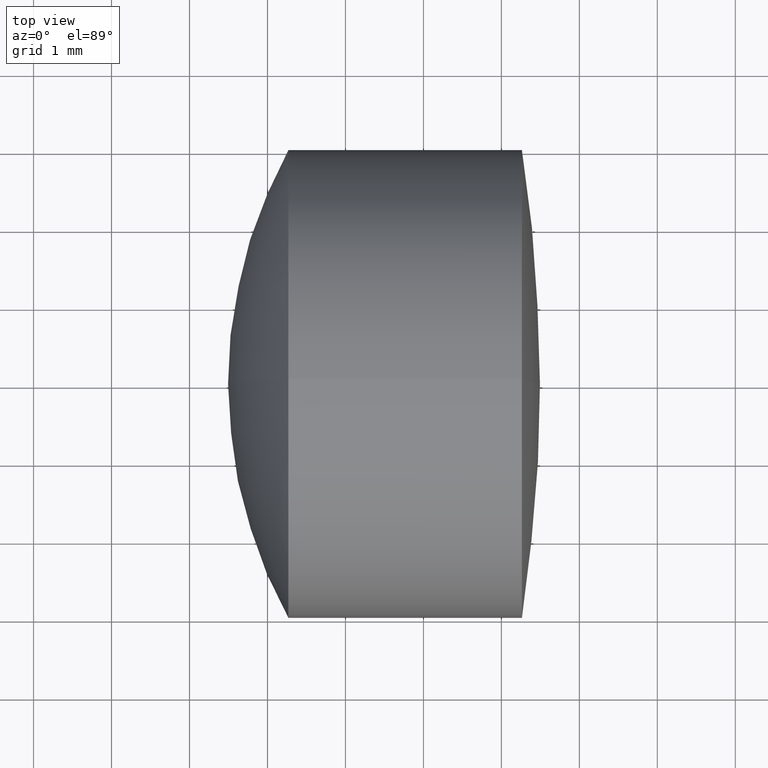
[diagram: clean part render]
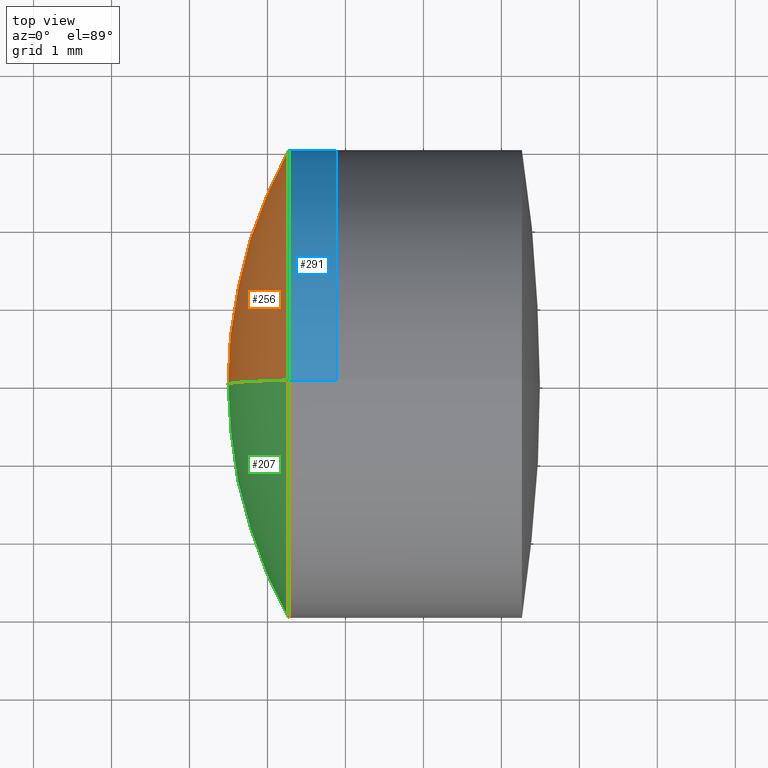
[diagram: same view with three faces highlighted in distinct colors, each labeled with its STEP entity id]
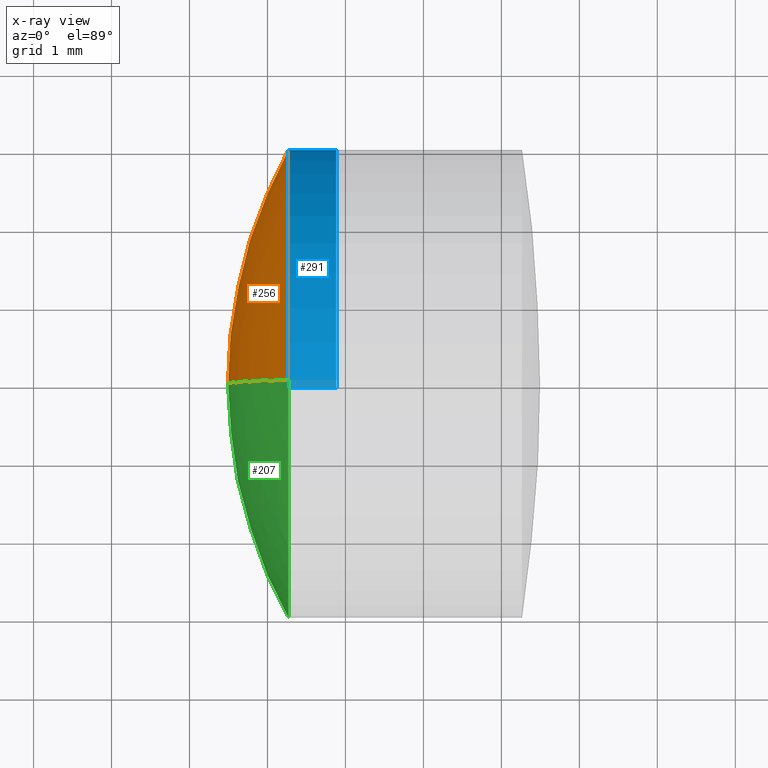
[diagram: x-ray of the same camera — body ghosted, the three highlighted faces saturated]
A machine part, top view with three faces highlighted in distinct colors.
The next image is the same camera in x-ray (body ghosted, the three faces saturated) — at least one of them is partly hidden behind the body in this view.
Their STEP definitions:

[orange] entity #256 — the highlighted spherical surface has radius 6.2 mm.
#4 = AXIS2_PLACEMENT_3D ( 'NONE', #27, #309, #134 ) ;
#17 = ORIENTED_EDGE ( 'NONE', *, *, #197, .T. ) ;
#27 = CARTESIAN_POINT ( 'NONE',  ( 7.694434915595918400, 0.0000000000000000000, 3.388131899457728100E-018 ) ) ;
#28 = EDGE_CURVE ( 'NONE', #187, #33, #204, .T. ) ;
#31 = DIRECTION ( 'NONE',  ( 0.0000000000000000000, -1.000000000000000000, -1.224646799147353200E-016 ) ) ;
#32 = SPHERICAL_SURFACE ( 'NONE', #186, 6.199999999999998400 ) ;
#33 = VERTEX_POINT ( 'NONE', #143 ) ;
#87 = AXIS2_PLACEMENT_3D ( 'NONE', #324, #295, #217 ) ;
#92 = CIRCLE ( 'NONE', #87, 3.000000000000000000 ) ;
#123 = AXIS2_PLACEMENT_3D ( 'NONE', #303, #31, #202 ) ;
#128 = EDGE_LOOP ( 'NONE', ( #222, #17, #257 ) ) ;
#134 = DIRECTION ( 'NONE',  ( 0.0000000000000000000, 0.0000000000000000000, 1.000000000000000000 ) ) ;
#143 = CARTESIAN_POINT ( 'NONE',  ( 1.494434915595920500, 0.0000000000000000000, -3.762523758362216700E-016 ) ) ;
#182 = DIRECTION ( 'NONE',  ( -0.0000000000000000000, -1.000000000000000000, -0.0000000000000000000 ) ) ;
#186 = AXIS2_PLACEMENT_3D ( 'NONE', #201, #182, #221 ) ;
#187 = VERTEX_POINT ( 'NONE', #205 ) ;
#197 = EDGE_CURVE ( 'NONE', #187, #231, #92, .T. ) ;
#201 = CARTESIAN_POINT ( 'NONE',  ( 7.694434915595918400, 0.0000000000000000000, 3.388131899457728100E-018 ) ) ;
#202 = DIRECTION ( 'NONE',  ( 0.0000000000000000000, 1.224646799147353200E-016, -1.000000000000000000 ) ) ;
#204 = CIRCLE ( 'NONE', #123, 6.199999999999998400 ) ;
#205 = CARTESIAN_POINT ( 'NONE',  ( 2.268570929095705700, -3.673940397442059400E-016, 3.000000000000000000 ) ) ;
#217 = DIRECTION ( 'NONE',  ( 0.0000000000000000000, 0.0000000000000000000, 1.000000000000000000 ) ) ;
#221 = DIRECTION ( 'NONE',  ( 0.0000000000000000000, 0.0000000000000000000, -1.000000000000000000 ) ) ;
#222 = ORIENTED_EDGE ( 'NONE', *, *, #28, .F. ) ;
#231 = VERTEX_POINT ( 'NONE', #345 ) ;
#256 = ADVANCED_FACE ( 'NONE', ( #304 ), #32, .T. ) ;
#257 = ORIENTED_EDGE ( 'NONE', *, *, #332, .T. ) ;
#266 = CIRCLE ( 'NONE', #4, 6.199999999999998400 ) ;
#295 = DIRECTION ( 'NONE',  ( -1.000000000000000000, -0.0000000000000000000, -0.0000000000000000000 ) ) ;
#303 = CARTESIAN_POINT ( 'NONE',  ( 7.694434915595918400, 0.0000000000000000000, 3.388131899457728100E-018 ) ) ;
#304 = FACE_OUTER_BOUND ( 'NONE', #128, .T. ) ;
#309 = DIRECTION ( 'NONE',  ( 0.0000000000000000000, 1.000000000000000000, -0.0000000000000000000 ) ) ;
#324 = CARTESIAN_POINT ( 'NONE',  ( 2.268570929095705200, 0.0000000000000000000, 0.0000000000000000000 ) ) ;
#332 = EDGE_CURVE ( 'NONE', #231, #33, #266, .T. ) ;
#345 = CARTESIAN_POINT ( 'NONE',  ( 2.268570929095705700, 0.0000000000000000000, -3.000000000000000000 ) ) ;

[blue] entity #291 — the highlighted cylindrical surface (partial cylindrical patch) has radius 3 mm, axis along (-1, -0, -0).
#8 = CARTESIAN_POINT ( 'NONE',  ( 2.881554070428458100, 0.0000000000000000000, 3.000000000000000000 ) ) ;
#40 = VECTOR ( 'NONE', #149, 1000.000000000000000 ) ;
#42 = FACE_OUTER_BOUND ( 'NONE', #168, .T. ) ;
#65 = VECTOR ( 'NONE', #310, 1000.000000000000000 ) ;
#87 = AXIS2_PLACEMENT_3D ( 'NONE', #324, #295, #217 ) ;
#92 = CIRCLE ( 'NONE', #87, 3.000000000000000000 ) ;
#94 = DIRECTION ( 'NONE',  ( -1.000000000000000000, -0.0000000000000000000, -0.0000000000000000000 ) ) ;
#95 = EDGE_CURVE ( 'NONE', #227, #231, #195, .T. ) ;
#100 = CARTESIAN_POINT ( 'NONE',  ( -0.8160621761658039000, 0.0000000000000000000, 0.0000000000000000000 ) ) ;
#108 = CARTESIAN_POINT ( 'NONE',  ( 2.881554070428458100, 0.0000000000000000000, 0.0000000000000000000 ) ) ;
#132 = VERTEX_POINT ( 'NONE', #8 ) ;
#140 = CYLINDRICAL_SURFACE ( 'NONE', #311, 3.000000000000000000 ) ;
#141 = DIRECTION ( 'NONE',  ( -1.000000000000000000, -0.0000000000000000000, -0.0000000000000000000 ) ) ;
#144 = EDGE_CURVE ( 'NONE', #132, #227, #281, .T. ) ;
#149 = DIRECTION ( 'NONE',  ( -1.000000000000000000, -0.0000000000000000000, -0.0000000000000000000 ) ) ;
#152 = DIRECTION ( 'NONE',  ( 0.0000000000000000000, 0.0000000000000000000, 1.000000000000000000 ) ) ;
#160 = LINE ( 'NONE', #245, #65 ) ;
#168 = EDGE_LOOP ( 'NONE', ( #172, #259, #242, #333 ) ) ;
#172 = ORIENTED_EDGE ( 'NONE', *, *, #144, .T. ) ;
#187 = VERTEX_POINT ( 'NONE', #205 ) ;
#195 = LINE ( 'NONE', #292, #40 ) ;
#197 = EDGE_CURVE ( 'NONE', #187, #231, #92, .T. ) ;
#205 = CARTESIAN_POINT ( 'NONE',  ( 2.268570929095705700, -3.673940397442059400E-016, 3.000000000000000000 ) ) ;
#217 = DIRECTION ( 'NONE',  ( 0.0000000000000000000, 0.0000000000000000000, 1.000000000000000000 ) ) ;
#227 = VERTEX_POINT ( 'NONE', #337 ) ;
#231 = VERTEX_POINT ( 'NONE', #345 ) ;
#236 = EDGE_CURVE ( 'NONE', #132, #187, #160, .T. ) ;
#242 = ORIENTED_EDGE ( 'NONE', *, *, #197, .F. ) ;
#245 = CARTESIAN_POINT ( 'NONE',  ( -0.8160621761658039000, 0.0000000000000000000, 3.000000000000000000 ) ) ;
#259 = ORIENTED_EDGE ( 'NONE', *, *, #95, .T. ) ;
#275 = DIRECTION ( 'NONE',  ( 0.0000000000000000000, 0.0000000000000000000, 1.000000000000000000 ) ) ;
#281 = CIRCLE ( 'NONE', #341, 3.000000000000000000 ) ;
#291 = ADVANCED_FACE ( 'NONE', ( #42 ), #140, .T. ) ;
#292 = CARTESIAN_POINT ( 'NONE',  ( -0.8160621761658039000, 3.673940397442059900E-016, -3.000000000000000000 ) ) ;
#295 = DIRECTION ( 'NONE',  ( -1.000000000000000000, -0.0000000000000000000, -0.0000000000000000000 ) ) ;
#310 = DIRECTION ( 'NONE',  ( -1.000000000000000000, -0.0000000000000000000, -0.0000000000000000000 ) ) ;
#311 = AXIS2_PLACEMENT_3D ( 'NONE', #100, #141, #152 ) ;
#324 = CARTESIAN_POINT ( 'NONE',  ( 2.268570929095705200, 0.0000000000000000000, 0.0000000000000000000 ) ) ;
#333 = ORIENTED_EDGE ( 'NONE', *, *, #236, .F. ) ;
#337 = CARTESIAN_POINT ( 'NONE',  ( 2.881554070428458100, 3.673940397442059900E-016, -3.000000000000000000 ) ) ;
#341 = AXIS2_PLACEMENT_3D ( 'NONE', #108, #94, #275 ) ;
#345 = CARTESIAN_POINT ( 'NONE',  ( 2.268570929095705700, 0.0000000000000000000, -3.000000000000000000 ) ) ;

[green] entity #207 — the highlighted spherical surface has radius 6.2 mm.
#4 = AXIS2_PLACEMENT_3D ( 'NONE', #27, #309, #134 ) ;
#13 = DIRECTION ( 'NONE',  ( 0.0000000000000000000, 0.0000000000000000000, 1.000000000000000000 ) ) ;
#21 = CARTESIAN_POINT ( 'NONE',  ( 7.694434915595918400, 0.0000000000000000000, 3.388131899457728100E-018 ) ) ;
#22 = ORIENTED_EDGE ( 'NONE', *, *, #332, .F. ) ;
#26 = SPHERICAL_SURFACE ( 'NONE', #192, 6.199999999999998400 ) ;
#27 = CARTESIAN_POINT ( 'NONE',  ( 7.694434915595918400, 0.0000000000000000000, 3.388131899457728100E-018 ) ) ;
#28 = EDGE_CURVE ( 'NONE', #187, #33, #204, .T. ) ;
#31 = DIRECTION ( 'NONE',  ( 0.0000000000000000000, -1.000000000000000000, -1.224646799147353200E-016 ) ) ;
#33 = VERTEX_POINT ( 'NONE', #143 ) ;
#77 = DIRECTION ( 'NONE',  ( 0.0000000000000000000, 0.0000000000000000000, -1.000000000000000000 ) ) ;
#85 = EDGE_LOOP ( 'NONE', ( #137, #306, #22 ) ) ;
#104 = CIRCLE ( 'NONE', #211, 3.000000000000000000 ) ;
#123 = AXIS2_PLACEMENT_3D ( 'NONE', #303, #31, #202 ) ;
#134 = DIRECTION ( 'NONE',  ( 0.0000000000000000000, 0.0000000000000000000, 1.000000000000000000 ) ) ;
#137 = ORIENTED_EDGE ( 'NONE', *, *, #249, .T. ) ;
#143 = CARTESIAN_POINT ( 'NONE',  ( 1.494434915595920500, 0.0000000000000000000, -3.762523758362216700E-016 ) ) ;
#147 = CARTESIAN_POINT ( 'NONE',  ( 2.268570929095705200, 0.0000000000000000000, 0.0000000000000000000 ) ) ;
#158 = DIRECTION ( 'NONE',  ( -0.0000000000000000000, -1.000000000000000000, -0.0000000000000000000 ) ) ;
#187 = VERTEX_POINT ( 'NONE', #205 ) ;
#189 = FACE_OUTER_BOUND ( 'NONE', #85, .T. ) ;
#192 = AXIS2_PLACEMENT_3D ( 'NONE', #21, #158, #77 ) ;
#202 = DIRECTION ( 'NONE',  ( 0.0000000000000000000, 1.224646799147353200E-016, -1.000000000000000000 ) ) ;
#204 = CIRCLE ( 'NONE', #123, 6.199999999999998400 ) ;
#205 = CARTESIAN_POINT ( 'NONE',  ( 2.268570929095705700, -3.673940397442059400E-016, 3.000000000000000000 ) ) ;
#207 = ADVANCED_FACE ( 'NONE', ( #189 ), #26, .T. ) ;
#211 = AXIS2_PLACEMENT_3D ( 'NONE', #147, #297, #13 ) ;
#231 = VERTEX_POINT ( 'NONE', #345 ) ;
#249 = EDGE_CURVE ( 'NONE', #231, #187, #104, .T. ) ;
#266 = CIRCLE ( 'NONE', #4, 6.199999999999998400 ) ;
#297 = DIRECTION ( 'NONE',  ( -1.000000000000000000, -0.0000000000000000000, -0.0000000000000000000 ) ) ;
#303 = CARTESIAN_POINT ( 'NONE',  ( 7.694434915595918400, 0.0000000000000000000, 3.388131899457728100E-018 ) ) ;
#306 = ORIENTED_EDGE ( 'NONE', *, *, #28, .T. ) ;
#309 = DIRECTION ( 'NONE',  ( 0.0000000000000000000, 1.000000000000000000, -0.0000000000000000000 ) ) ;
#332 = EDGE_CURVE ( 'NONE', #231, #33, #266, .T. ) ;
#345 = CARTESIAN_POINT ( 'NONE',  ( 2.268570929095705700, 0.0000000000000000000, -3.000000000000000000 ) ) ;